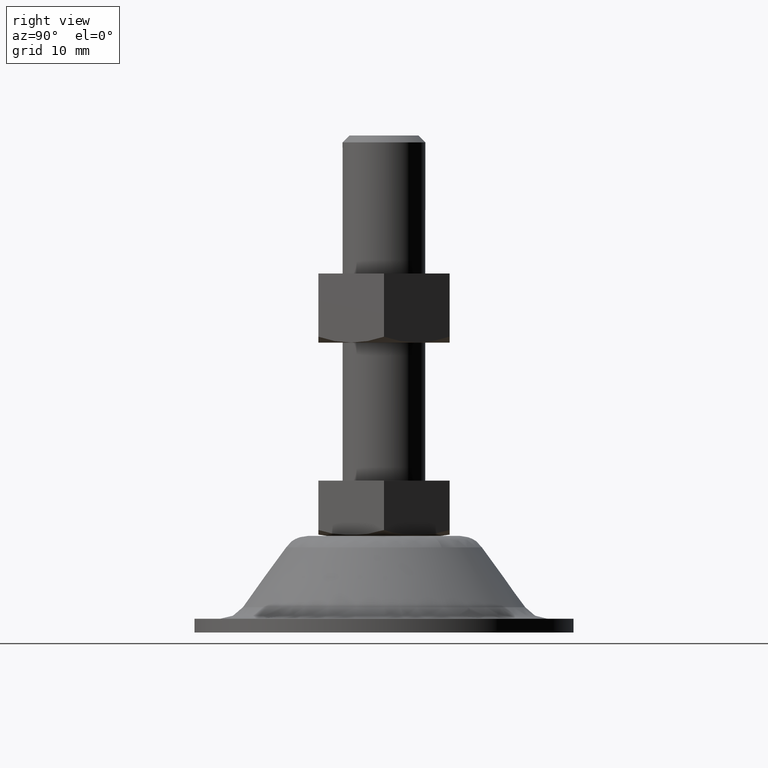
[diagram: clean part render]
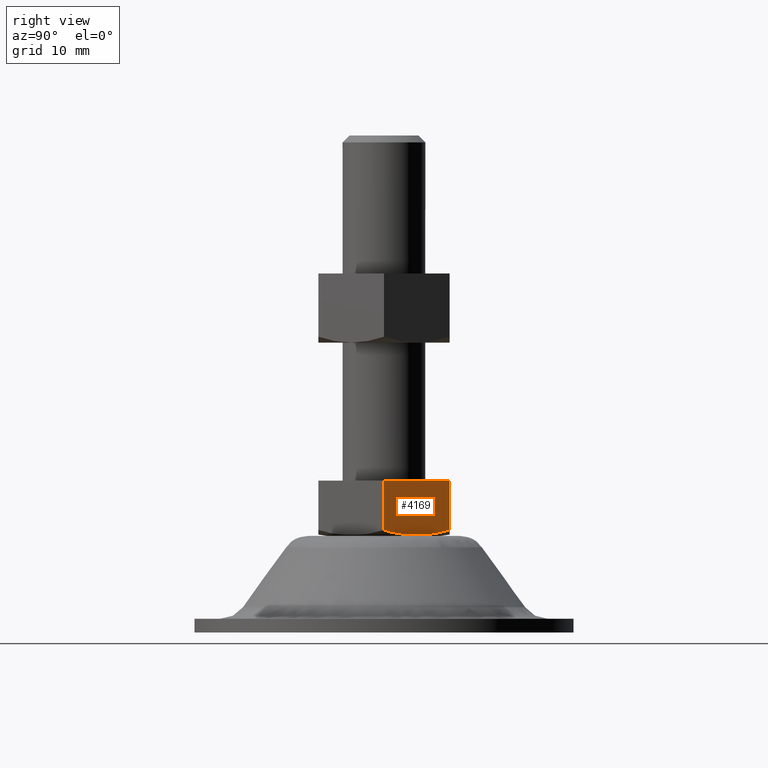
[diagram: same view with one face highlighted and labeled with its STEP entity id]
A machine part, right view. The second image highlights one B-rep face of the part: STEP entity #4169.
In plain terms, the highlighted face is a freeform B-spline surface patch.
Its self-contained STEP definition (entity closure, byte-faithful):
#2988=CARTESIAN_POINT('',(8.001459049100443,5.141053634682389,14.173960991497459));
#2989=VERTEX_POINT('',#2988);
#3003=CARTESIAN_POINT('',(10.969655000000021,-4.597017E-014,14.856001123000800));
#3004=VERTEX_POINT('',#3003);
#3005=CARTESIAN_POINT('',(8.001459049100443,5.141053634682389,14.173960991497459));
#3006=CARTESIAN_POINT('',(8.077646631539826,5.009093188488322,14.171979541035229));
#3007=CARTESIAN_POINT('',(8.153787460850353,4.877213721153802,14.171038953686841));
#3008=CARTESIAN_POINT('',(8.460759928942927,4.345523091157912,14.171130230347330));
#3009=CARTESIAN_POINT('',(8.691235890318477,3.946327980329870,14.180080526810251));
#3010=CARTESIAN_POINT('',(9.151216321875410,3.149620432130970,14.219609390917370));
#3011=CARTESIAN_POINT('',(9.380719366033356,2.752110464707152,14.250219706066810));
#3012=CARTESIAN_POINT('',(9.838243992571805,1.959656498985848,14.344422063075831));
#3013=CARTESIAN_POINT('',(10.066266853071941,1.564710286918456,14.407985650207189));
#3014=CARTESIAN_POINT('',(10.406570710459430,0.975288169724936,14.541855602464439));
#3015=CARTESIAN_POINT('',(10.519714485658060,0.779317887529290,14.592953967149930));
#3016=CARTESIAN_POINT('',(10.745275885828130,0.388635053234332,14.711316951167770));
#3017=CARTESIAN_POINT('',(10.857694302901090,0.193921129173840,14.778563935974359));
#3018=CARTESIAN_POINT('',(10.969655000000021,-4.597017E-014,14.856001123000800));
#3019=B_SPLINE_CURVE_WITH_KNOTS('',3,(#3005,#3006,#3007,#3008,#3009,#3010,#3011,#3012,#3013,#3014,#3015,#3016,#3017,#3018),.UNSPECIFIED.,.F.,.U.,(4,2,2,2,2,2,4),(0.458799352693583,0.500000000000000,0.625000000000000,0.750000000000000,0.875000000000000,0.937500000000000,1.0),.UNSPECIFIED.);
#3020=EDGE_CURVE('',#2989,#3004,#3019,.T.);
#3238=CARTESIAN_POINT('',(5.484827328095700,9.500000000000000,14.856001123000800));
#3239=VERTEX_POINT('',#3238);
#3271=CARTESIAN_POINT('',(5.484827328095700,9.500000000000000,14.856001123000800));
#3272=CARTESIAN_POINT('',(5.595420178275890,9.308448117895331,14.779510516170930));
#3273=CARTESIAN_POINT('',(5.706829302202669,9.115481243457378,14.712717718668230));
#3274=CARTESIAN_POINT('',(5.930967124773950,8.727261922576814,14.594799770318170));
#3275=CARTESIAN_POINT('',(6.043696922132392,8.532007573104556,14.543687664781240));
#3276=CARTESIAN_POINT('',(6.383499364196363,7.943450638258596,14.409503501451329));
#3277=CARTESIAN_POINT('',(6.612169476190533,7.547381156502136,14.345398579574010));
#3278=CARTESIAN_POINT('',(6.957271539788568,6.949645001676596,14.274138172275180));
#3279=CARTESIAN_POINT('',(7.072659332238651,6.749786866538890,14.254585119324020));
#3280=CARTESIAN_POINT('',(7.304008090001871,6.349077831070244,14.222284440784120));
#3281=CARTESIAN_POINT('',(7.420086087624715,6.148024224211973,14.209528622257160));
#3282=CARTESIAN_POINT('',(7.691346009014662,5.678186817956018,14.186321879529860));
#3283=CARTESIAN_POINT('',(7.846499234699832,5.409452725978182,14.177988473030160));
#3284=CARTESIAN_POINT('',(8.001459049100443,5.141053634682389,14.173960991497459));
#3285=B_SPLINE_CURVE_WITH_KNOTS('',3,(#3271,#3272,#3273,#3274,#3275,#3276,#3277,#3278,#3279,#3280,#3281,#3282,#3283,#3284),.UNSPECIFIED.,.F.,.U.,(4,2,2,2,2,2,4),(0.0,0.062500000000000,0.125000000000000,0.250000000000000,0.312500000000000,0.375000000000000,0.458799352693583),.UNSPECIFIED.);
#3286=EDGE_CURVE('',#3239,#2989,#3285,.T.);
#4058=CARTESIAN_POINT('',(10.969654999999999,0.0,22.0));
#4059=VERTEX_POINT('',#4058);
#4065=CARTESIAN_POINT('',(5.484827999999999,9.500000000000000,22.0));
#4066=VERTEX_POINT('',#4065);
#4067=CARTESIAN_POINT('',(10.969654999999999,0.0,22.0));
#4068=CARTESIAN_POINT('',(5.484827999999999,9.500000000000000,22.0));
#4069=QUASI_UNIFORM_CURVE('',1,(#4067,#4068),.UNSPECIFIED.,.F.,.U.);
#4070=EDGE_CURVE('',#4059,#4066,#4069,.T.);
#4145=CARTESIAN_POINT('',(5.484827328095700,9.500000000000000,14.856001123000800));
#4146=CARTESIAN_POINT('',(5.484827999999999,9.500000000000000,22.0));
#4147=QUASI_UNIFORM_CURVE('',1,(#4145,#4146),.UNSPECIFIED.,.F.,.U.);
#4148=EDGE_CURVE('',#3239,#4066,#4147,.T.);
#4153=CARTESIAN_POINT('',(11.243622157897400,-0.474525085299013,13.780044043703130));
#4154=CARTESIAN_POINT('',(5.210860576050223,9.974525546115297,13.780044043703130));
#4155=CARTESIAN_POINT('',(11.243622157897400,-0.474525085299013,22.391053864767208));
#4156=CARTESIAN_POINT('',(5.210860576050223,9.974525546115297,22.391053864767208));
#4157=B_SPLINE_SURFACE_WITH_KNOTS('',1,1,((#4153,#4155),(#4154,#4156)),.UNSPECIFIED.,.F.,.F.,.U.,(2,2),(2,2),(0.0,12.065524083158220),(0.0,8.611009821064082),.UNSPECIFIED.);
#4158=ORIENTED_EDGE('',*,*,#3020,.F.);
#4159=ORIENTED_EDGE('',*,*,#3286,.F.);
#4160=ORIENTED_EDGE('',*,*,#4148,.T.);
#4161=ORIENTED_EDGE('',*,*,#4070,.F.);
#4162=CARTESIAN_POINT('',(10.969655000000021,-4.597017E-014,14.856001123000800));
#4163=CARTESIAN_POINT('',(10.969654999999999,0.0,22.0));
#4164=QUASI_UNIFORM_CURVE('',1,(#4162,#4163),.UNSPECIFIED.,.F.,.U.);
#4165=EDGE_CURVE('',#3004,#4059,#4164,.T.);
#4166=ORIENTED_EDGE('',*,*,#4165,.F.);
#4167=EDGE_LOOP('',(#4158,#4159,#4160,#4161,#4166));
#4168=FACE_OUTER_BOUND('',#4167,.T.);
#4169=ADVANCED_FACE('',(#4168),#4157,.T.);